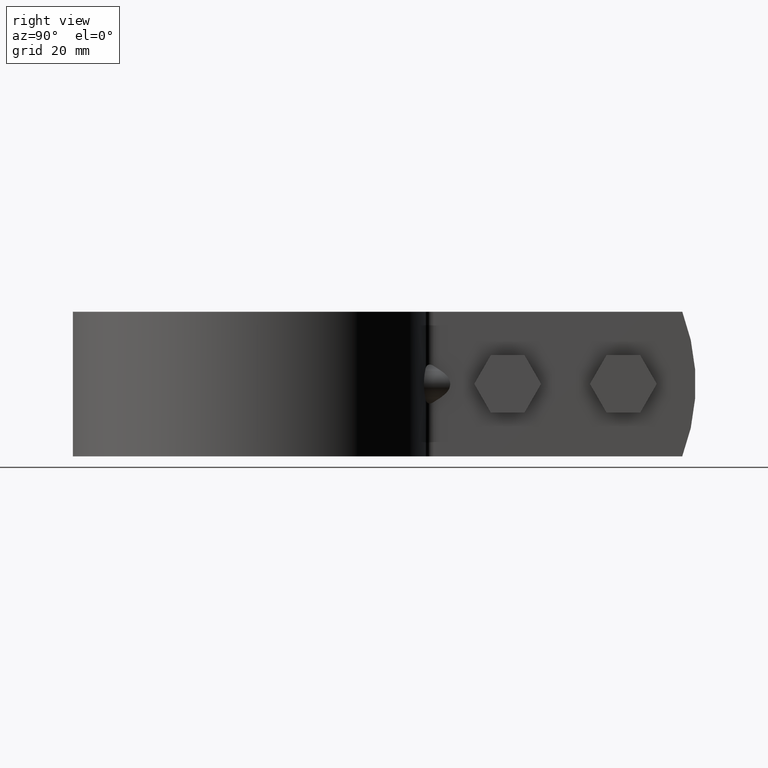
[diagram: clean part render]
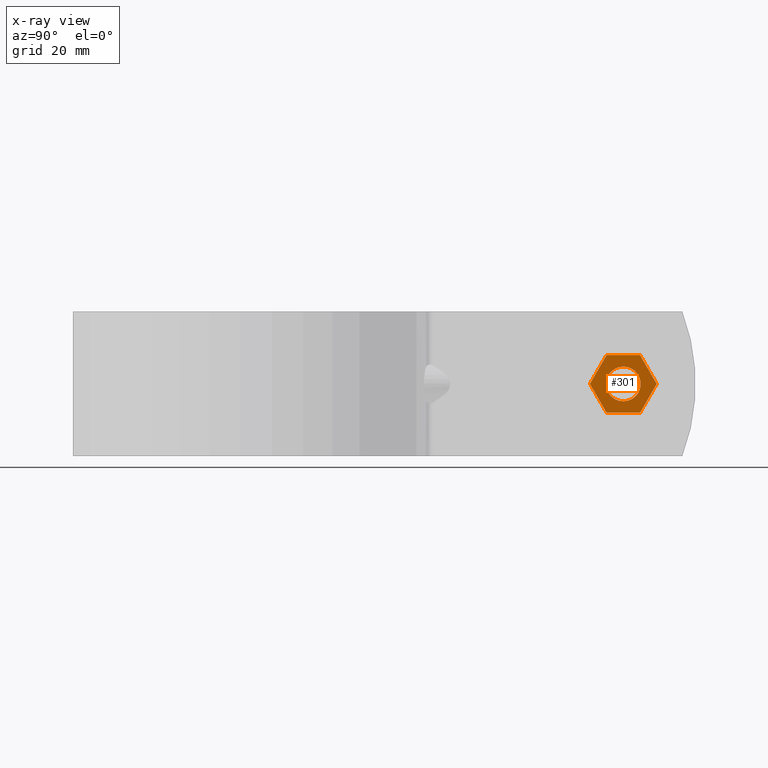
[diagram: x-ray — body ghosted, one internal face saturated and labeled with its STEP entity id]
A machine part, right view, then the same camera in x-ray: the body is ghosted and one INTERNAL B-rep face — a face not visible from any outside direction — is saturated and labeled: STEP entity #301.
In plain terms, the highlighted planar face has unit normal (-1, 0, 0).
Its self-contained STEP definition (entity closure, byte-faithful):
#301 = ADVANCED_FACE( '', ( #450, #451 ), #452, .T. );
#450 = FACE_OUTER_BOUND( '', #682, .T. );
#451 = FACE_BOUND( '', #683, .T. );
#452 = PLANE( '', #684 );
#682 = EDGE_LOOP( '', ( #1120, #1121, #1122, #1123, #1124, #1125 ) );
#683 = EDGE_LOOP( '', ( #1126 ) );
#684 = AXIS2_PLACEMENT_3D( '', #1127, #1128, #1129 );
#1120 = ORIENTED_EDGE( '', *, *, #1708, .F. );
#1121 = ORIENTED_EDGE( '', *, *, #1709, .F. );
#1122 = ORIENTED_EDGE( '', *, *, #1710, .F. );
#1123 = ORIENTED_EDGE( '', *, *, #1711, .F. );
#1124 = ORIENTED_EDGE( '', *, *, #1712, .F. );
#1125 = ORIENTED_EDGE( '', *, *, #1713, .F. );
#1126 = ORIENTED_EDGE( '', *, *, #1714, .T. );
#1127 = CARTESIAN_POINT( '', ( 5.10000000000001, 55.7531626844225, -5.00000000000000 ) );
#1128 = DIRECTION( '', ( -1.00000000000000, 6.06692130572647E-017, 0.000000000000000 ) );
#1129 = DIRECTION( '', ( 0.000000000000000, 0.000000000000000, 1.00000000000000 ) );
#1708 = EDGE_CURVE( '', #2010, #2011, #2012, .T. );
#1709 = EDGE_CURVE( '', #2013, #2010, #2014, .T. );
#1710 = EDGE_CURVE( '', #2015, #2013, #2016, .T. );
#1711 = EDGE_CURVE( '', #2017, #2015, #2018, .T. );
#1712 = EDGE_CURVE( '', #2019, #2017, #2020, .T. );
#1713 = EDGE_CURVE( '', #2011, #2019, #2021, .T. );
#1714 = EDGE_CURVE( '', #2022, #2022, #2023, .F. );
#2010 = VERTEX_POINT( '', #2510 );
#2011 = VERTEX_POINT( '', #2511 );
#2012 = LINE( '', #2512, #2513 );
#2013 = VERTEX_POINT( '', #2514 );
#2014 = LINE( '', #2515, #2516 );
#2015 = VERTEX_POINT( '', #2517 );
#2016 = LINE( '', #2518, #2519 );
#2017 = VERTEX_POINT( '', #2520 );
#2018 = LINE( '', #2521, #2522 );
#2019 = VERTEX_POINT( '', #2523 );
#2020 = LINE( '', #2524, #2525 );
#2021 = LINE( '', #2526, #2527 );
#2022 = VERTEX_POINT( '', #2528 );
#2023 = CIRCLE( '', #2529, 3.00000000000000 );
#2510 = CARTESIAN_POINT( '', ( 5.10000000000001, 61.5266653763188, -5.00000000000000 ) );
#2511 = CARTESIAN_POINT( '', ( 5.10000000000001, 67.3001680682151, -5.00000000000000 ) );
#2512 = CARTESIAN_POINT( '', ( 5.10000000000001, 61.5266653763188, -5.00000000000000 ) );
#2513 = VECTOR( '', #3122, 1000.00000000000 );
#2514 = CARTESIAN_POINT( '', ( 5.10000000000001, 58.6399140303707, -8.67361737988404E-016 ) );
#2515 = CARTESIAN_POINT( '', ( 5.10000000000001, 58.6399140303707, 1.93178474057610E-016 ) );
#2516 = VECTOR( '', #3123, 1000.00000000000 );
#2517 = CARTESIAN_POINT( '', ( 5.10000000000001, 61.5266653763188, 5.00000000000000 ) );
#2518 = CARTESIAN_POINT( '', ( 5.10000000000001, 61.5266653763188, 5.00000000000000 ) );
#2519 = VECTOR( '', #3124, 1000.00000000000 );
#2520 = CARTESIAN_POINT( '', ( 5.10000000000001, 67.3001680682151, 5.00000000000000 ) );
#2521 = CARTESIAN_POINT( '', ( 5.10000000000001, 67.3001680682151, 5.00000000000000 ) );
#2522 = VECTOR( '', #3125, 1000.00000000000 );
#2523 = CARTESIAN_POINT( '', ( 5.10000000000001, 70.1869194141632, -8.67361737988404E-016 ) );
#2524 = CARTESIAN_POINT( '', ( 5.10000000000001, 70.1869194141632, -1.22087514200374E-015 ) );
#2525 = VECTOR( '', #3126, 1000.00000000000 );
#2526 = CARTESIAN_POINT( '', ( 5.10000000000001, 67.3001680682151, -5.00000000000000 ) );
#2527 = VECTOR( '', #3127, 1000.00000000000 );
#2528 = CARTESIAN_POINT( '', ( 5.10000000000001, 64.4134167222669, 3.00000000000000 ) );
#2529 = AXIS2_PLACEMENT_3D( '', #3128, #3129, #3130 );
#3122 = DIRECTION( '', ( 6.06692130572647E-017, 1.00000000000000, -3.00462919747432E-016 ) );
#3123 = DIRECTION( '', ( 3.03346065286324E-017, 0.500000000000000, -0.866025403784439 ) );
#3124 = DIRECTION( '', ( -3.03346065286324E-017, -0.500000000000000, -0.866025403784439 ) );
#3125 = DIRECTION( '', ( -6.06692130572647E-017, -1.00000000000000, 0.000000000000000 ) );
#3126 = DIRECTION( '', ( -3.03346065286324E-017, -0.500000000000000, 0.866025403784439 ) );
#3127 = DIRECTION( '', ( 3.03346065286324E-017, 0.500000000000000, 0.866025403784439 ) );
#3128 = CARTESIAN_POINT( '', ( 5.10000000000001, 64.4134167222669, -8.67361737988404E-016 ) );
#3129 = DIRECTION( '', ( -1.00000000000000, 6.06692130572647E-017, 0.000000000000000 ) );
#3130 = DIRECTION( '', ( 0.000000000000000, 0.000000000000000, 1.00000000000000 ) );